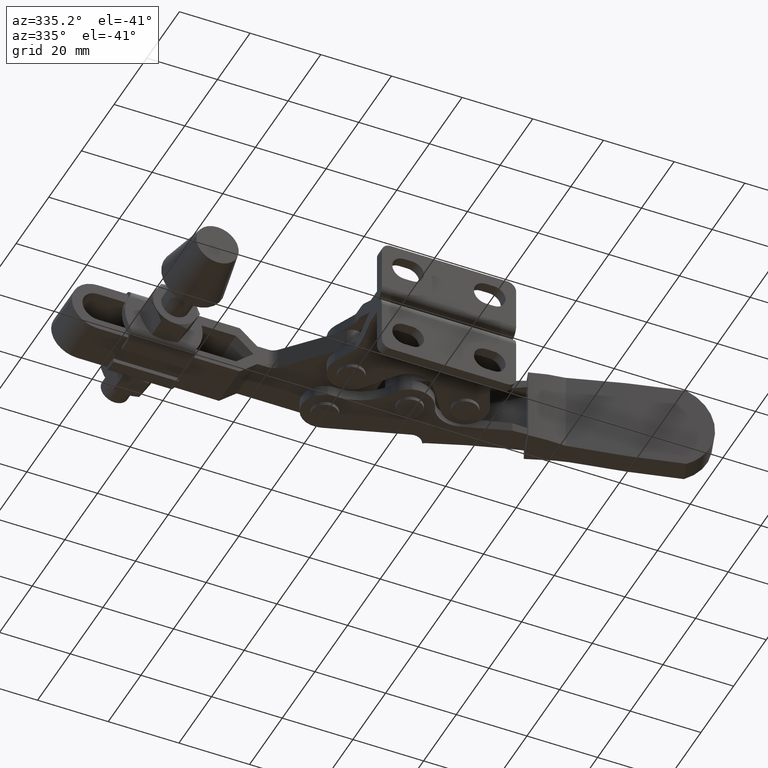
[diagram: clean part render]
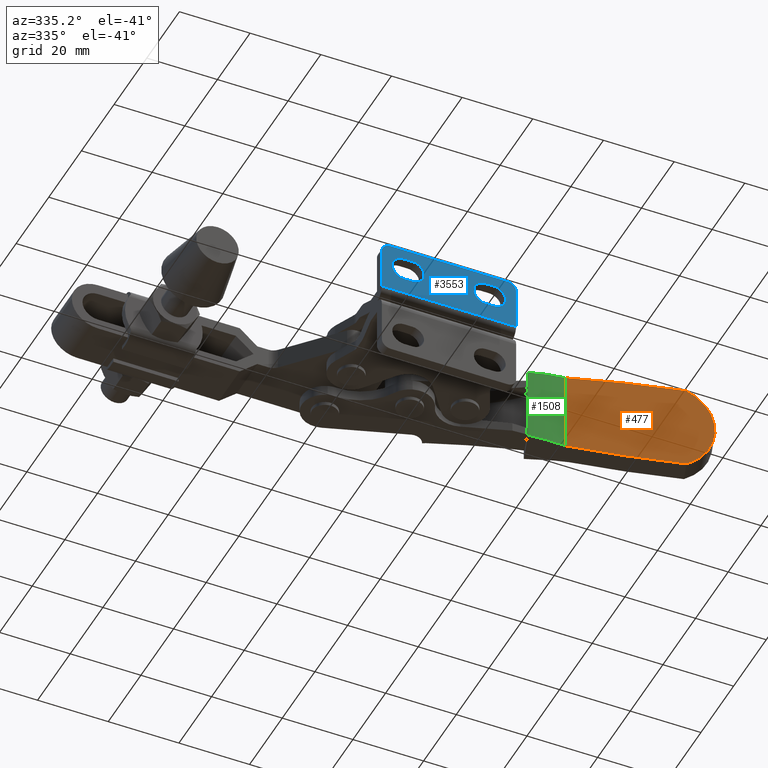
[diagram: same view with three faces highlighted in distinct colors, each labeled with its STEP entity id]
A machine part, auxiliary view with three faces highlighted in distinct colors.
Their STEP definitions:

[orange] entity #477 — the highlighted planar face has unit normal (0.2376, 0.9714, 0).
#364 = FACE_OUTER_BOUND ( 'NONE', #10584, .T. ) ;
#477 = ADVANCED_FACE ( 'NONE', ( #364 ), #8044, .F. ) ;
#999 = ORIENTED_EDGE ( 'NONE', *, *, #4073, .T. ) ;
#1643 = DIRECTION ( 'NONE',  ( 0.0000000000000000000, 5.423418723394456200E-031, -1.000000000000000000 ) ) ;
#1890 = CARTESIAN_POINT ( 'NONE',  ( 96.33387897931717700, 14.29408367986264800, 12.42961386743927000 ) ) ;
#2129 = CARTESIAN_POINT ( 'NONE',  ( 96.33387897931697800, 14.29408367986270200, -12.43799414531151900 ) ) ;
#2660 =( BOUNDED_CURVE ( )  B_SPLINE_CURVE ( 3, ( #2129, #8192, #3010, #9063 ),
 .UNSPECIFIED., .F., .F. ) 
 B_SPLINE_CURVE_WITH_KNOTS ( ( 4, 4 ),
 ( 1.550885717419652000, 1.645467350796613500 ),
 .UNSPECIFIED. ) 
 CURVE ( )  GEOMETRIC_REPRESENTATION_ITEM ( )  RATIONAL_B_SPLINE_CURVE ( ( 1.000000000000000000, 0.9992546651414118100, 0.9992546651414118100, 1.000000000000000000 ) ) 
 REPRESENTATION_ITEM ( '' )  );
#3010 = CARTESIAN_POINT ( 'NONE',  ( 75.81834364603564300, 19.31191168763103900, -12.35933862249322200 ) ) ;
#3169 = AXIS2_PLACEMENT_3D ( 'NONE', #7956, #10942, #4436 ) ;
#3291 = CARTESIAN_POINT ( 'NONE',  ( 96.33387897931717700, 14.29408367986264800, 12.42961386743927000 ) ) ;
#4073 = EDGE_CURVE ( 'NONE', #9323, #8018, #9706, .T. ) ;
#4381 = EDGE_CURVE ( 'NONE', #11173, #8018, #2660, .T. ) ;
#4436 = DIRECTION ( 'NONE',  ( -0.9713671142925046600, 0.2375835206218059000, 3.166985625919941000E-030 ) ) ;
#4517 = CARTESIAN_POINT ( 'NONE',  ( 96.33387897931697800, 14.29408367986270200, -12.43799414531151900 ) ) ;
#4823 = EDGE_CURVE ( 'NONE', #9323, #10156, #5853, .T. ) ;
#4835 = CARTESIAN_POINT ( 'NONE',  ( 96.33387897931697800, 14.29408367986270200, -12.43799414531151900 ) ) ;
#4939 = CARTESIAN_POINT ( 'NONE',  ( 96.33387897931717700, 14.29408367986264800, 12.42961386743927000 ) ) ;
#5098 = CARTESIAN_POINT ( 'NONE',  ( 65.58622850458670000, 21.81455142387918800, 19.99580986106387200 ) ) ;
#5110 = EDGE_CURVE ( 'NONE', #10156, #11173, #9040, .T. ) ;
#5853 =( BOUNDED_CURVE ( )  B_SPLINE_CURVE ( 3, ( #8376, #9175, #10112, #4939 ),
 .UNSPECIFIED., .F., .F. ) 
 B_SPLINE_CURVE_WITH_KNOTS ( ( 4, 4 ),
 ( 4.637717956382972200, 4.732299589759934500 ),
 .UNSPECIFIED. ) 
 CURVE ( )  GEOMETRIC_REPRESENTATION_ITEM ( )  RATIONAL_B_SPLINE_CURVE ( ( 1.000000000000000000, 0.9992546651414118100, 0.9992546651414118100, 1.000000000000000000 ) ) 
 REPRESENTATION_ITEM ( '' )  );
#6390 = ORIENTED_EDGE ( 'NONE', *, *, #4381, .F. ) ;
#6446 = ORIENTED_EDGE ( 'NONE', *, *, #5110, .F. ) ;
#6478 = CARTESIAN_POINT ( 'NONE',  ( 65.58622850458670000, 21.81455142387918800, 11.56517490775778100 ) ) ;
#6683 = ORIENTED_EDGE ( 'NONE', *, *, #4823, .F. ) ;
#7087 = CARTESIAN_POINT ( 'NONE',  ( 107.3274531485024700, 11.60520115861901800, 6.394648065183190500 ) ) ;
#7406 = VECTOR ( 'NONE', #1643, 1000.000000000000000 ) ;
#7956 = CARTESIAN_POINT ( 'NONE',  ( 65.58622850458670000, 21.81455142387918800, 19.99580986106387200 ) ) ;
#8018 = VERTEX_POINT ( 'NONE', #8702 ) ;
#8044 = PLANE ( 'NONE',  #3169 ) ;
#8192 = CARTESIAN_POINT ( 'NONE',  ( 86.07520526745189200, 16.80321929039907400, -12.64769986807520800 ) ) ;
#8376 = CARTESIAN_POINT ( 'NONE',  ( 65.58622850458670000, 21.81455142387918800, 11.56517490775778100 ) ) ;
#8702 = CARTESIAN_POINT ( 'NONE',  ( 65.58622850458670000, 21.81455142387918800, -11.57355518563012400 ) ) ;
#9040 =( BOUNDED_CURVE ( )  B_SPLINE_CURVE ( 3, ( #1890, #7087, #9685, #4517 ),
 .UNSPECIFIED., .F., .F. ) 
 B_SPLINE_CURVE_WITH_KNOTS ( ( 4, 4 ),
 ( 5.203456250220080300, 7.362914364139105500 ),
 .UNSPECIFIED. ) 
 CURVE ( )  GEOMETRIC_REPRESENTATION_ITEM ( )  RATIONAL_B_SPLINE_CURVE ( ( 1.000000000000000000, 0.6477115381336379100, 0.6477115381336379100, 1.000000000000000000 ) ) 
 REPRESENTATION_ITEM ( '' )  );
#9063 = CARTESIAN_POINT ( 'NONE',  ( 65.58622850458670000, 21.81455142387918800, -11.57355518563012400 ) ) ;
#9175 = CARTESIAN_POINT ( 'NONE',  ( 75.81834364603555800, 19.31191168763106000, 12.35095834462097700 ) ) ;
#9323 = VERTEX_POINT ( 'NONE', #6478 ) ;
#9685 = CARTESIAN_POINT ( 'NONE',  ( 107.3274531485024000, 11.60520115861903700, -6.403028343055676300 ) ) ;
#9706 = LINE ( 'NONE', #5098, #7406 ) ;
#10112 = CARTESIAN_POINT ( 'NONE',  ( 86.07520526745187800, 16.80321929039907800, 12.63931959020300500 ) ) ;
#10156 = VERTEX_POINT ( 'NONE', #3291 ) ;
#10584 = EDGE_LOOP ( 'NONE', ( #6683, #999, #6390, #6446 ) ) ;
#10942 = DIRECTION ( 'NONE',  ( 0.2375835206218059300, 0.9713671142925047700, 2.334566883193609400E-031 ) ) ;
#11173 = VERTEX_POINT ( 'NONE', #4835 ) ;

[blue] entity #3553 — the highlighted planar face has unit normal (0, 1, -0).
#151 = CARTESIAN_POINT ( 'NONE',  ( 35.20000000000003800, -2.923253132613989900E-006, 11.09580986106411700 ) ) ;
#220 = LINE ( 'NONE', #9904, #9183 ) ;
#276 = ORIENTED_EDGE ( 'NONE', *, *, #7841, .T. ) ;
#331 = CARTESIAN_POINT ( 'NONE',  ( 3.499999999999809000, -2.923253121338287300E-006, 2.995809861063910800 ) ) ;
#582 = AXIS2_PLACEMENT_3D ( 'NONE', #9981, #4813, #10867 ) ;
#624 = VECTOR ( 'NONE', #1316, 1000.000000000000000 ) ;
#687 = EDGE_CURVE ( 'NONE', #7185, #5987, #10954, .T. ) ;
#817 = CARTESIAN_POINT ( 'NONE',  ( 32.89999999999984900, -2.923253139552883800E-006, 14.44580986106413800 ) ) ;
#851 = PLANE ( 'NONE',  #4075 ) ;
#913 = DIRECTION ( 'NONE',  ( -1.000000000000000000, 0.0000000000000000000, 0.0000000000000000000 ) ) ;
#1213 = LINE ( 'NONE', #10849, #5566 ) ;
#1316 = DIRECTION ( 'NONE',  ( -1.000000000000000000, 0.0000000000000000000, 0.0000000000000000000 ) ) ;
#1491 = VERTEX_POINT ( 'NONE', #4601 ) ;
#1511 = CARTESIAN_POINT ( 'NONE',  ( 45.00000000000000000, -2.923253123087264200E-006, 14.44580986106413800 ) ) ;
#1540 = CARTESIAN_POINT ( 'NONE',  ( 41.50000000000009900, -2.923253123073010800E-006, -39.00419013893554200 ) ) ;
#1577 = CARTESIAN_POINT ( 'NONE',  ( 9.799999999999517500, -2.923253132613989900E-006, 11.09580986106411700 ) ) ;
#1582 = EDGE_CURVE ( 'NONE', #3145, #7549, #1213, .T. ) ;
#1738 = DIRECTION ( 'NONE',  ( 0.0000000000000000000, 1.000000000000000000, -4.673285226230568900E-018 ) ) ;
#1882 = ORIENTED_EDGE ( 'NONE', *, *, #11230, .T. ) ;
#1987 = CIRCLE ( 'NONE', #6756, 2.499999999999950300 ) ;
#1993 = FACE_BOUND ( 'NONE', #9238, .T. ) ;
#2093 = DIRECTION ( 'NONE',  ( -1.000000000000000000, 0.0000000000000000000, 0.0000000000000000000 ) ) ;
#2103 = ORIENTED_EDGE ( 'NONE', *, *, #10174, .T. ) ;
#2266 = VERTEX_POINT ( 'NONE', #3999 ) ;
#2268 = FACE_BOUND ( 'NONE', #2553, .T. ) ;
#2459 = DIRECTION ( 'NONE',  ( 0.0000000000000000000, 4.673323541338744700E-018, 1.000000000000000000 ) ) ;
#2553 = EDGE_LOOP ( 'NONE', ( #2567, #7596, #4101, #276 ) ) ;
#2567 = ORIENTED_EDGE ( 'NONE', *, *, #1582, .T. ) ;
#2638 = DIRECTION ( 'NONE',  ( 0.0000000000000000000, 1.000000000000000000, -4.673285226230568900E-018 ) ) ;
#2700 = VECTOR ( 'NONE', #5723, 1000.000000000000000 ) ;
#2785 = DIRECTION ( 'NONE',  ( 0.0000000000000000000, 1.000000000000000000, -4.673285226230568900E-018 ) ) ;
#3006 = VECTOR ( 'NONE', #8448, 1000.000000000000000 ) ;
#3075 = CARTESIAN_POINT ( 'NONE',  ( 45.00000000000000000, -2.923253123073010800E-006, 17.49580986106407500 ) ) ;
#3145 = VERTEX_POINT ( 'NONE', #4520 ) ;
#3324 = DIRECTION ( 'NONE',  ( 0.0000000000000000000, 0.0000000000000000000, 1.000000000000000000 ) ) ;
#3357 = EDGE_CURVE ( 'NONE', #1491, #7022, #7834, .T. ) ;
#3475 = EDGE_CURVE ( 'NONE', #7549, #4266, #7969, .T. ) ;
#3553 = ADVANCED_FACE ( 'NONE', ( #1993, #2268, #8907 ), #851, .F. ) ;
#3675 = ORIENTED_EDGE ( 'NONE', *, *, #3357, .T. ) ;
#3816 = LINE ( 'NONE', #1511, #3006 ) ;
#3830 = LINE ( 'NONE', #4380, #5866 ) ;
#3999 = CARTESIAN_POINT ( 'NONE',  ( 41.50000000000009900, -2.923253139552883800E-006, 14.99580986106413100 ) ) ;
#4075 = AXIS2_PLACEMENT_3D ( 'NONE', #5187, #1738, #7796 ) ;
#4101 = ORIENTED_EDGE ( 'NONE', *, *, #6536, .T. ) ;
#4112 = VERTEX_POINT ( 'NONE', #5135 ) ;
#4125 = ORIENTED_EDGE ( 'NONE', *, *, #10921, .F. ) ;
#4159 = LINE ( 'NONE', #9431, #8778 ) ;
#4172 = VERTEX_POINT ( 'NONE', #9580 ) ;
#4266 = VERTEX_POINT ( 'NONE', #8008 ) ;
#4305 = CIRCLE ( 'NONE', #582, 3.350000000000017900 ) ;
#4380 = CARTESIAN_POINT ( 'NONE',  ( 45.00000000000000000, -2.923253123118575200E-006, 7.745809861064103100 ) ) ;
#4506 = AXIS2_PLACEMENT_3D ( 'NONE', #7823, #2638, #8689 ) ;
#4520 = CARTESIAN_POINT ( 'NONE',  ( 12.09999999999971500, -2.923253146491777700E-006, 7.745809861064102200 ) ) ;
#4601 = CARTESIAN_POINT ( 'NONE',  ( 39.00000000000014900, -2.923253139552883800E-006, 17.49580986106408200 ) ) ;
#4652 = ORIENTED_EDGE ( 'NONE', *, *, #10029, .F. ) ;
#4731 = DIRECTION ( 'NONE',  ( 0.0000000000000000000, 0.0000000000000000000, 1.000000000000000000 ) ) ;
#4813 = DIRECTION ( 'NONE',  ( 0.0000000000000000000, 1.000000000000000000, -4.673285226230568900E-018 ) ) ;
#4933 = DIRECTION ( 'NONE',  ( 0.0000000000000000000, 1.000000000000000000, -4.673285226230568900E-018 ) ) ;
#5135 = CARTESIAN_POINT ( 'NONE',  ( 12.09999999999969400, -2.923253123087264200E-006, 14.44580986106413800 ) ) ;
#5137 = VECTOR ( 'NONE', #3324, 1000.000000000000000 ) ;
#5187 = CARTESIAN_POINT ( 'NONE',  ( 45.00000000000000000, -2.923253123073010800E-006, 17.49580986106407500 ) ) ;
#5340 = ORIENTED_EDGE ( 'NONE', *, *, #10461, .F. ) ;
#5374 = DIRECTION ( 'NONE',  ( 0.0000000000000000000, 1.000000000000000000, -4.673285226230568900E-018 ) ) ;
#5460 = ORIENTED_EDGE ( 'NONE', *, *, #8601, .T. ) ;
#5566 = VECTOR ( 'NONE', #2093, 1000.000000000000000 ) ;
#5723 = DIRECTION ( 'NONE',  ( -1.000000000000000000, 0.0000000000000000000, 0.0000000000000000000 ) ) ;
#5866 = VECTOR ( 'NONE', #913, 1000.000000000000000 ) ;
#5920 = DIRECTION ( 'NONE',  ( 1.000000000000000000, 0.0000000000000000000, 0.0000000000000000000 ) ) ;
#5987 = VERTEX_POINT ( 'NONE', #10272 ) ;
#6037 = AXIS2_PLACEMENT_3D ( 'NONE', #1577, #7642, #2459 ) ;
#6060 = ORIENTED_EDGE ( 'NONE', *, *, #10494, .T. ) ;
#6132 = CIRCLE ( 'NONE', #4506, 2.500000000000000400 ) ;
#6273 = VERTEX_POINT ( 'NONE', #331 ) ;
#6353 = CARTESIAN_POINT ( 'NONE',  ( 3.499999999999809000, -2.923253139552883800E-006, 14.99580986106407800 ) ) ;
#6411 = ORIENTED_EDGE ( 'NONE', *, *, #8569, .F. ) ;
#6536 = EDGE_CURVE ( 'NONE', #4266, #4112, #3816, .T. ) ;
#6756 = AXIS2_PLACEMENT_3D ( 'NONE', #7974, #2785, #8842 ) ;
#6934 = CARTESIAN_POINT ( 'NONE',  ( 9.799999999999517500, -2.923253139552883800E-006, 7.745809861064102200 ) ) ;
#7022 = VERTEX_POINT ( 'NONE', #8325 ) ;
#7185 = VERTEX_POINT ( 'NONE', #9030 ) ;
#7237 = CIRCLE ( 'NONE', #7672, 3.350000000000017900 ) ;
#7549 = VERTEX_POINT ( 'NONE', #6934 ) ;
#7595 = ORIENTED_EDGE ( 'NONE', *, *, #687, .T. ) ;
#7596 = ORIENTED_EDGE ( 'NONE', *, *, #3475, .T. ) ;
#7642 = DIRECTION ( 'NONE',  ( 0.0000000000000000000, 1.000000000000000000, -4.673285226230568900E-018 ) ) ;
#7672 = AXIS2_PLACEMENT_3D ( 'NONE', #10104, #4933, #10988 ) ;
#7796 = DIRECTION ( 'NONE',  ( 0.0000000000000000000, 4.673285226230568900E-018, 1.000000000000000000 ) ) ;
#7823 = CARTESIAN_POINT ( 'NONE',  ( 5.999999999999811700, -2.923253132613989900E-006, 14.99580986106407800 ) ) ;
#7834 = LINE ( 'NONE', #3075, #624 ) ;
#7841 = EDGE_CURVE ( 'NONE', #4112, #3145, #7237, .T. ) ;
#7969 = CIRCLE ( 'NONE', #6037, 3.350000000000017900 ) ;
#7974 = CARTESIAN_POINT ( 'NONE',  ( 39.00000000000014900, -2.923253132613989900E-006, 14.99580986106413100 ) ) ;
#8008 = CARTESIAN_POINT ( 'NONE',  ( 9.799999999999508700, -2.923253139552883800E-006, 14.44580986106413800 ) ) ;
#8204 = VERTEX_POINT ( 'NONE', #6353 ) ;
#8325 = CARTESIAN_POINT ( 'NONE',  ( 5.999999999999811700, -2.923253146491777700E-006, 17.49580986106407800 ) ) ;
#8448 = DIRECTION ( 'NONE',  ( 1.000000000000000000, 0.0000000000000000000, 0.0000000000000000000 ) ) ;
#8569 = EDGE_CURVE ( 'NONE', #8204, #7022, #6132, .T. ) ;
#8601 = EDGE_CURVE ( 'NONE', #5987, #4172, #3830, .T. ) ;
#8644 = VERTEX_POINT ( 'NONE', #8770 ) ;
#8689 = DIRECTION ( 'NONE',  ( 0.0000000000000000000, 4.673239588679584400E-018, 1.000000000000000000 ) ) ;
#8770 = CARTESIAN_POINT ( 'NONE',  ( 41.50000000000009900, -2.923253123073010800E-006, 2.995809861063895700 ) ) ;
#8778 = VECTOR ( 'NONE', #5920, 1000.000000000000000 ) ;
#8842 = DIRECTION ( 'NONE',  ( 0.0000000000000000000, 4.673239588679678400E-018, 1.000000000000000000 ) ) ;
#8907 = FACE_OUTER_BOUND ( 'NONE', #11008, .T. ) ;
#9030 = CARTESIAN_POINT ( 'NONE',  ( 35.20000000000003800, -2.923253123087264200E-006, 14.44580986106413800 ) ) ;
#9067 = LINE ( 'NONE', #10915, #2700 ) ;
#9183 = VECTOR ( 'NONE', #4731, 1000.000000000000000 ) ;
#9238 = EDGE_LOOP ( 'NONE', ( #5460, #6060, #1882, #7595 ) ) ;
#9431 = CARTESIAN_POINT ( 'NONE',  ( 45.00000000000000000, -2.923253123087264200E-006, 14.44580986106413800 ) ) ;
#9456 = LINE ( 'NONE', #1540, #5137 ) ;
#9513 = VERTEX_POINT ( 'NONE', #817 ) ;
#9539 = AXIS2_PLACEMENT_3D ( 'NONE', #151, #5374, #10555 ) ;
#9580 = CARTESIAN_POINT ( 'NONE',  ( 32.89999999999985600, -2.923253139552883800E-006, 7.745809861064102200 ) ) ;
#9904 = CARTESIAN_POINT ( 'NONE',  ( 3.499999999999804600, -2.923253123073010800E-006, -39.00419013893554200 ) ) ;
#9981 = CARTESIAN_POINT ( 'NONE',  ( 32.89999999999985600, -2.923253132613989900E-006, 11.09580986106411700 ) ) ;
#10029 = EDGE_CURVE ( 'NONE', #8644, #6273, #9067, .T. ) ;
#10104 = CARTESIAN_POINT ( 'NONE',  ( 12.09999999999971500, -2.923253132613989900E-006, 11.09580986106411700 ) ) ;
#10174 = EDGE_CURVE ( 'NONE', #8644, #2266, #9456, .T. ) ;
#10272 = CARTESIAN_POINT ( 'NONE',  ( 35.20000000000003800, -2.923253146491777700E-006, 7.745809861064102200 ) ) ;
#10461 = EDGE_CURVE ( 'NONE', #6273, #8204, #220, .T. ) ;
#10494 = EDGE_CURVE ( 'NONE', #4172, #9513, #4305, .T. ) ;
#10555 = DIRECTION ( 'NONE',  ( 0.0000000000000000000, 4.673323541338744700E-018, 1.000000000000000000 ) ) ;
#10849 = CARTESIAN_POINT ( 'NONE',  ( 45.00000000000000000, -2.923253123118575200E-006, 7.745809861064103100 ) ) ;
#10867 = DIRECTION ( 'NONE',  ( 0.0000000000000000000, 4.673323541338744700E-018, 1.000000000000000000 ) ) ;
#10915 = CARTESIAN_POINT ( 'NONE',  ( 45.00000000000000000, -2.923253123140773400E-006, 2.995809861063910800 ) ) ;
#10921 = EDGE_CURVE ( 'NONE', #1491, #2266, #1987, .T. ) ;
#10954 = CIRCLE ( 'NONE', #9539, 3.350000000000017900 ) ;
#10988 = DIRECTION ( 'NONE',  ( 0.0000000000000000000, 4.673323541338744700E-018, 1.000000000000000000 ) ) ;
#11008 = EDGE_LOOP ( 'NONE', ( #6411, #5340, #4652, #2103, #4125, #3675 ) ) ;
#11230 = EDGE_CURVE ( 'NONE', #9513, #7185, #4159, .T. ) ;

[green] entity #1508 — the highlighted cylindrical surface (partial cylindrical patch) has radius 51.9216 mm, axis along (0, 0, -1).
#245 = VERTEX_POINT ( 'NONE', #6558 ) ;
#1195 = LINE ( 'NONE', #7462, #7842 ) ;
#1508 = ADVANCED_FACE ( 'NONE', ( #1715 ), #6102, .T. ) ;
#1643 = DIRECTION ( 'NONE',  ( 0.0000000000000000000, 5.423418723394456200E-031, -1.000000000000000000 ) ) ;
#1715 = FACE_OUTER_BOUND ( 'NONE', #6441, .T. ) ;
#2023 = VERTEX_POINT ( 'NONE', #5073 ) ;
#2032 = EDGE_CURVE ( 'NONE', #2023, #9323, #2880, .T. ) ;
#2773 = EDGE_CURVE ( 'NONE', #8018, #245, #6277, .T. ) ;
#2802 = EDGE_CURVE ( 'NONE', #2023, #245, #1195, .T. ) ;
#2880 = B_SPLINE_CURVE_WITH_KNOTS ( 'NONE', 3,
 ( #5440, #10940, #6034, #7906 ),
 .UNSPECIFIED., .F., .F.,
 ( 4, 4 ),
 ( 1.398578778534939300E-017, 0.01018489909579380100 ),
 .UNSPECIFIED. ) ;
#3245 = AXIS2_PLACEMENT_3D ( 'NONE', #6447, #7274, #9814 ) ;
#3986 = CARTESIAN_POINT ( 'NONE',  ( 65.58622850458670000, 21.81455142387918800, -11.57355518563012400 ) ) ;
#4073 = EDGE_CURVE ( 'NONE', #9323, #8018, #9706, .T. ) ;
#5073 = CARTESIAN_POINT ( 'NONE',  ( 55.50891388266397500, 22.98983324084432300, 10.67152382764043800 ) ) ;
#5098 = CARTESIAN_POINT ( 'NONE',  ( 65.58622850458670000, 21.81455142387918800, 19.99580986106387200 ) ) ;
#5440 = CARTESIAN_POINT ( 'NONE',  ( 55.50891388266397500, 22.98983324084432300, 10.67152382764043800 ) ) ;
#5733 = CARTESIAN_POINT ( 'NONE',  ( 55.50891388266397500, 22.98983324084432300, -10.67990410551269800 ) ) ;
#6034 = CARTESIAN_POINT ( 'NONE',  ( 62.18384443825946300, 21.87663356185127500, 11.32175646429560000 ) ) ;
#6102 = CYLINDRICAL_SURFACE ( 'NONE', #3245, 51.92163782813796800 ) ;
#6277 = B_SPLINE_CURVE_WITH_KNOTS ( 'NONE', 3,
 ( #3986, #9177, #10926, #5733 ),
 .UNSPECIFIED., .F., .F.,
 ( 4, 4 ),
 ( 0.0000000000000000000, 0.01018489909579379600 ),
 .UNSPECIFIED. ) ;
#6441 = EDGE_LOOP ( 'NONE', ( #9332, #8840, #10117, #6629 ) ) ;
#6447 = CARTESIAN_POINT ( 'NONE',  ( 66.53346719170230000, 73.72754800109439100, 19.99580986106387200 ) ) ;
#6478 = CARTESIAN_POINT ( 'NONE',  ( 65.58622850458670000, 21.81455142387918800, 11.56517490775778100 ) ) ;
#6558 = CARTESIAN_POINT ( 'NONE',  ( 55.50891388266397500, 22.98983324084432300, -10.67990410551269800 ) ) ;
#6629 = ORIENTED_EDGE ( 'NONE', *, *, #4073, .F. ) ;
#7274 = DIRECTION ( 'NONE',  ( 0.0000000000000000000, 5.423418723394456200E-031, -1.000000000000000000 ) ) ;
#7406 = VECTOR ( 'NONE', #1643, 1000.000000000000000 ) ;
#7462 = CARTESIAN_POINT ( 'NONE',  ( 55.50891388266397500, 22.98983324084432300, 19.99580986106387200 ) ) ;
#7842 = VECTOR ( 'NONE', #8337, 1000.000000000000000 ) ;
#7906 = CARTESIAN_POINT ( 'NONE',  ( 65.58622850458670000, 21.81455142387918800, 11.56517490775778100 ) ) ;
#8018 = VERTEX_POINT ( 'NONE', #8702 ) ;
#8337 = DIRECTION ( 'NONE',  ( 0.0000000000000000000, 5.423418723394456200E-031, -1.000000000000000000 ) ) ;
#8702 = CARTESIAN_POINT ( 'NONE',  ( 65.58622850458670000, 21.81455142387918800, -11.57355518563012400 ) ) ;
#8840 = ORIENTED_EDGE ( 'NONE', *, *, #2802, .T. ) ;
#9177 = CARTESIAN_POINT ( 'NONE',  ( 62.18384443825945600, 21.87663356185126800, -11.33013674216790700 ) ) ;
#9323 = VERTEX_POINT ( 'NONE', #6478 ) ;
#9332 = ORIENTED_EDGE ( 'NONE', *, *, #2032, .F. ) ;
#9706 = LINE ( 'NONE', #5098, #7406 ) ;
#9814 = DIRECTION ( 'NONE',  ( 0.3101901272761490900, 0.9506745420702116300, 0.0000000000000000000 ) ) ;
#10117 = ORIENTED_EDGE ( 'NONE', *, *, #2773, .F. ) ;
#10926 = CARTESIAN_POINT ( 'NONE',  ( 58.82468097880975900, 22.26936620198484100, -11.03419205917139800 ) ) ;
#10940 = CARTESIAN_POINT ( 'NONE',  ( 58.82468097880971700, 22.26936620198484500, 11.02581178129914400 ) ) ;